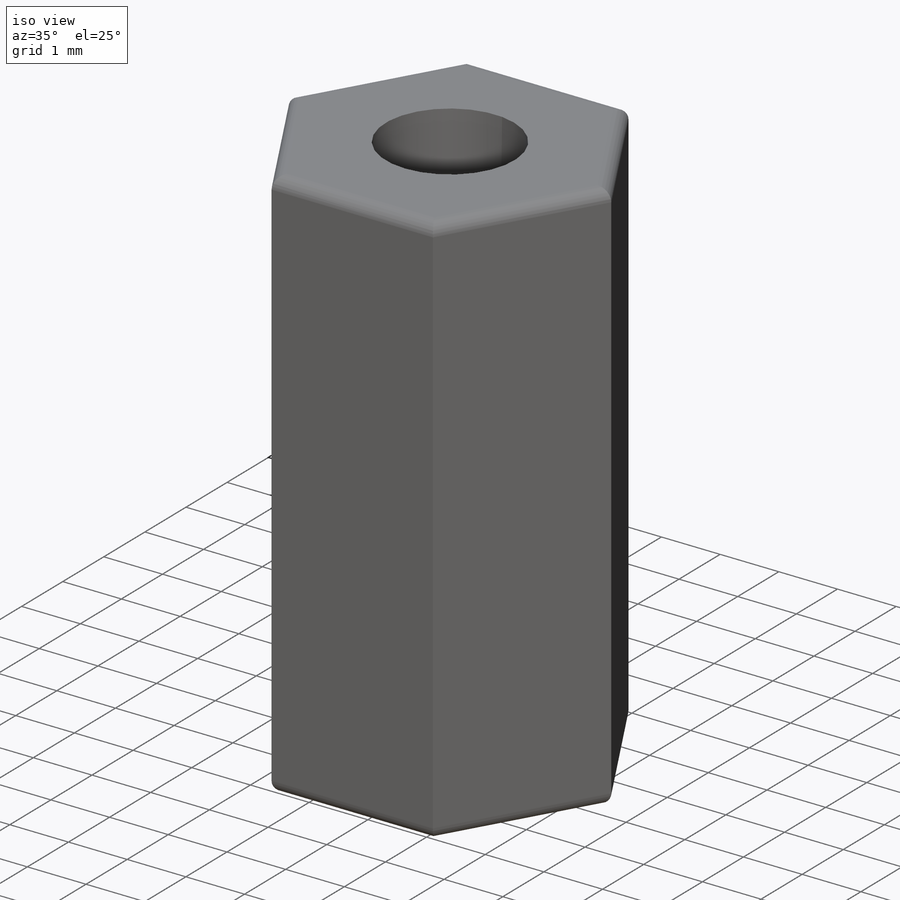
[diagram: iso view]
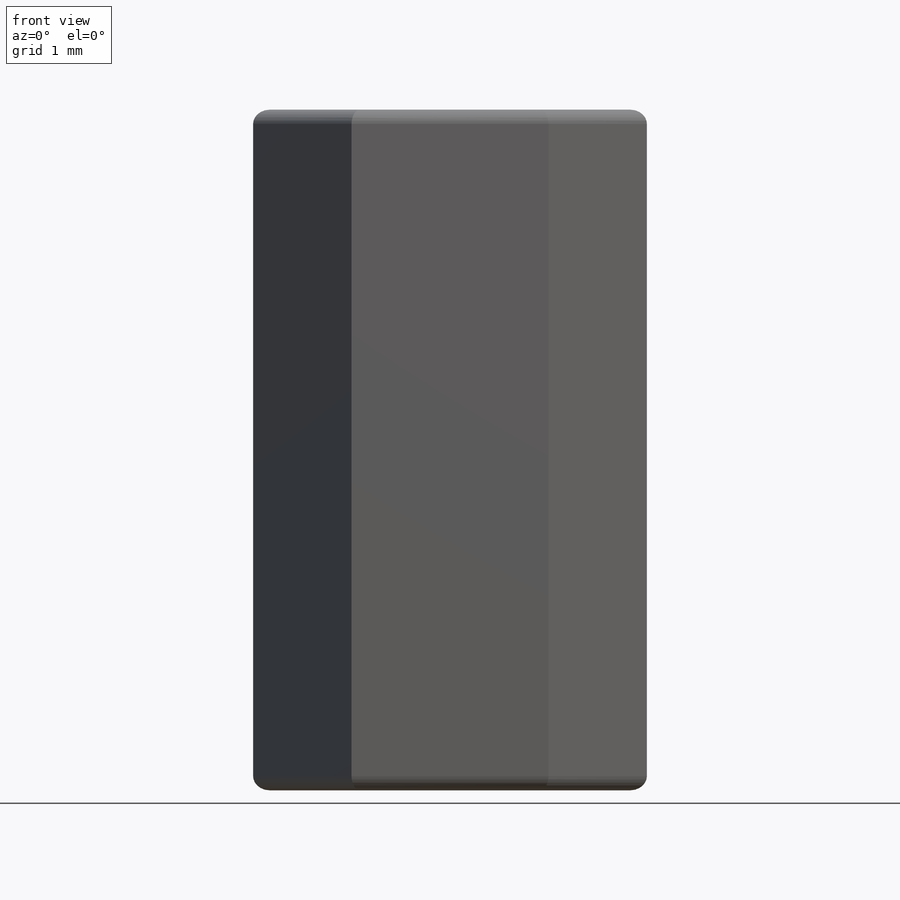
[diagram: front view]
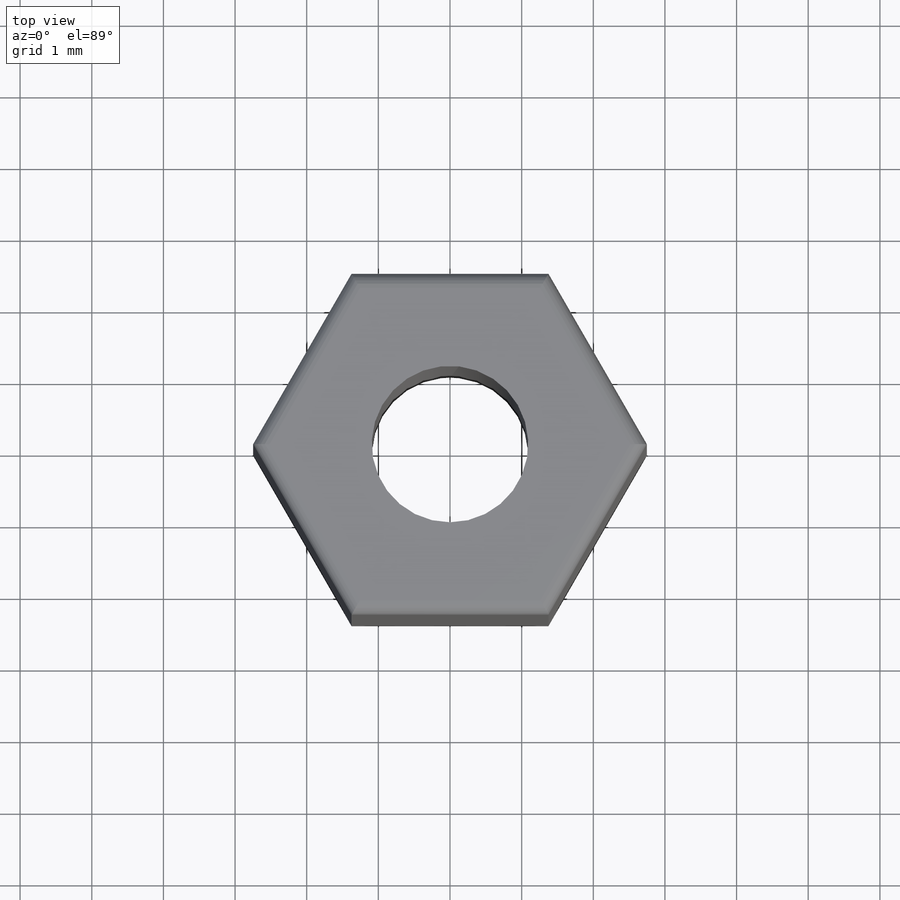
[diagram: top view]
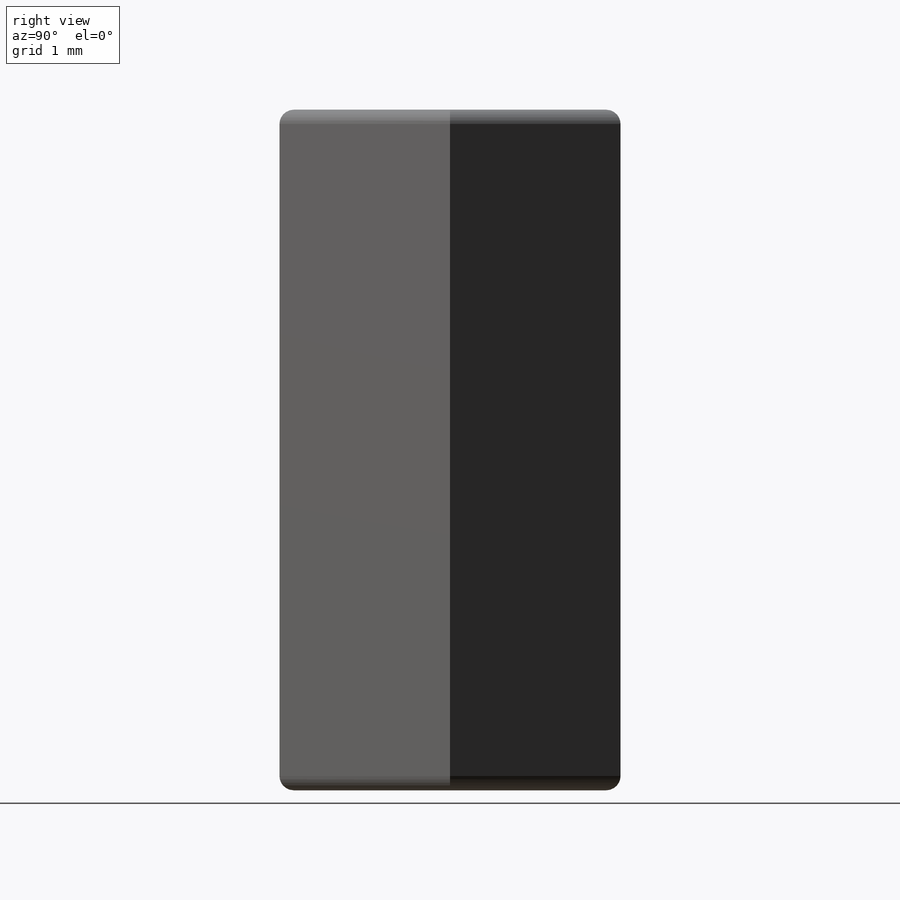
[diagram: right view]
SOLIDWORKS PART (.sldprt)
format: sldprt  version: not decoded by parser v0  size: 169,984 bytes
history: native  units: mm
features: plane x3, sketch x3, cut_extrude x2, material x1, extrude x1, fillet x1 (+13 scaffold rows collapsed)
feature tree (24):
  scaffold x13  (default folders/planes/origin — collapsed)
  material  "201.0-T43 Molde de fundição com isolamento (SS)"
  plane  "Plano frontal"
  plane  "Plano superior"
  plane  "Plano direito"
  sketch  "Esboço1"  dims[D1=4.76mm]
  extrude  "Ressalto-extrusão1"  Depth=9.5mm
  fillet  "Filete1"  Radius=0.2mm
  sketch  "Esboço2"  dims[D1=2.1844mm]
  sketch  "Esboço3"  dims[D1=2.1844mm]
  cut_extrude  "Corte-extrusão1"  Depth=4.76mm
  cut_extrude  "Corte-extrusão2"  [1 undecoded]
decode coverage: 6 of 7 modeling features carry decoded parameters
note: 1 parameter value undecoded
note: suppression state not decoded; provenance and decode notes live in map.json
